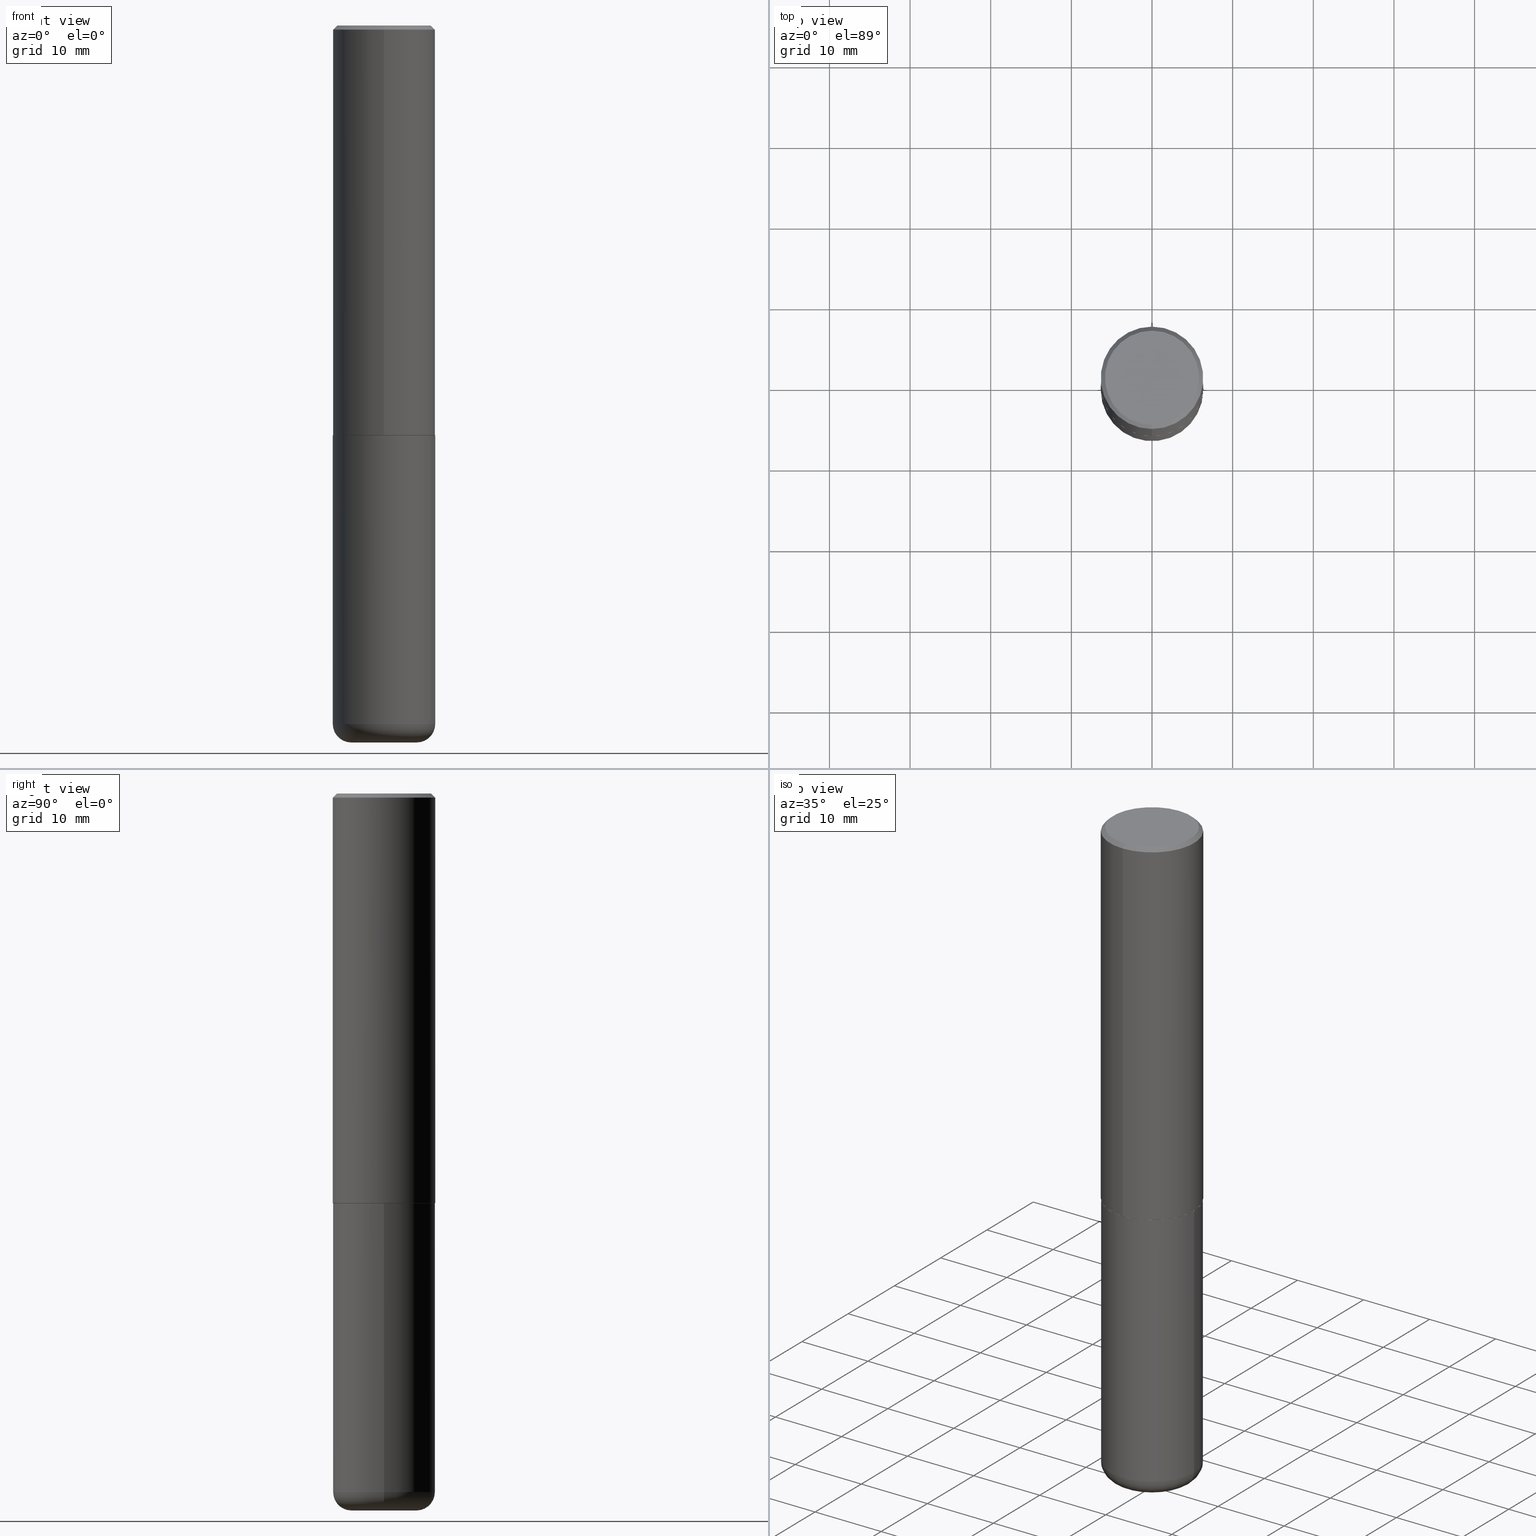
[diagram: canonical four-view strip — front | top / right | iso, engineering-drawing reading convention]
A machine part, canonical four-view strip (front | top / right | iso — engineering-drawing reading convention). The complete STEP part file that produces these views, byte-faithful:
ISO-10303-21;
HEADER;
FILE_DESCRIPTION (( 'STEP AP203' ),
    '1' );
FILE_NAME ('37551.STEP',
    '2024-03-02T04:08:49',
    ( '' ),
    ( '' ),
    'SwSTEP 2.0',
    'SolidWorks 2023',
    '' );
FILE_SCHEMA (( 'CONFIG_CONTROL_DESIGN' ));
ENDSEC;

DATA;
#1 = DATE_TIME_ROLE ( 'creation_date' ) ;
#2 = EDGE_CURVE ( 'NONE', #184, #77, #141, .T. ) ;
#3 = AXIS2_PLACEMENT_3D ( 'NONE', #232, #354, #196 ) ;
#4 = LINE ( 'NONE', #5, #154 ) ;
#5 = CARTESIAN_POINT ( 'NONE',  ( -1.738757706743831162E-15, -0.2490000000000069658, -1.999999999999998890 ) ) ;
#6 = CARTESIAN_POINT ( 'NONE',  ( 1.776356839400276103E-15, 0.2499999999999933109, -1.999000000000000554 ) ) ;
#7 = ORIENTED_EDGE ( 'NONE', *, *, #392, .T. ) ;
#8 = EDGE_CURVE ( 'NONE', #207, #184, #201, .T. ) ;
#9 = PRODUCT_DEFINITION_FORMATION_WITH_SPECIFIED_SOURCE ( 'ANY', '', #225, .NOT_KNOWN. ) ;
#10 = ORIENTED_EDGE ( 'NONE', *, *, #392, .F. ) ;
#11 = VERTEX_POINT ( 'NONE', #124 ) ;
#12 = ORIENTED_EDGE ( 'NONE', *, *, #325, .T. ) ;
#13 = ORIENTED_EDGE ( 'NONE', *, *, #20, .F. ) ;
#14 = AXIS2_PLACEMENT_3D ( 'NONE', #153, #278, #192 ) ;
#15 = LOCAL_TIME ( 23, 8, 49.00000000000000000, #160 ) ;
#16 = VERTEX_POINT ( 'NONE', #249 ) ;
#17 = ORIENTED_EDGE ( 'NONE', *, *, #74, .T. ) ;
#18 = LINE ( 'NONE', #335, #58 ) ;
#19 = CARTESIAN_POINT ( 'NONE',  ( -0.1600000000000000033, -1.076908298823896635E-14, -3.410000000000000142 ) ) ;
#20 = EDGE_CURVE ( 'NONE', #267, #272, #139, .T. ) ;
#21 =( NAMED_UNIT ( * ) SI_UNIT ( $, .STERADIAN. ) SOLID_ANGLE_UNIT ( ) );
#22 = AXIS2_PLACEMENT_3D ( 'NONE', #255, #31, #164 ) ;
#23 = DIRECTION ( 'NONE',  ( 1.000000000000000000, -6.982962677686266711E-15, 0.000000000000000000 ) ) ;
#24 = PERSON_AND_ORGANIZATION ( #309, #228 ) ;
#25 = CARTESIAN_POINT ( 'NONE',  ( 0.000000000000000000, 0.000000000000000000, 0.000000000000000000 ) ) ;
#26 = FACE_OUTER_BOUND ( 'NONE', #152, .T. ) ;
#27 = DIRECTION ( 'NONE',  ( 2.438088387897960049E-29, -3.491481338843145188E-15, -1.000000000000000000 ) ) ;
#28 =( CONVERSION_BASED_UNIT ( 'INCH', #129 ) LENGTH_UNIT ( ) NAMED_UNIT ( #41 ) );
#29 = VECTOR ( 'NONE', #402, 39.37007874015748143 ) ;
#30 = EDGE_CURVE ( 'NONE', #239, #11, #305, .T. ) ;
#31 = DIRECTION ( 'NONE',  ( -2.445468806185136597E-29, 3.491481338843145583E-15, 1.000000000000000000 ) ) ;
#32 = CARTESIAN_POINT ( 'NONE',  ( 1.769251412042698169E-15, 0.2489999999999930325, -2.000000000000000444 ) ) ;
#33 = EDGE_CURVE ( 'NONE', #272, #267, #341, .T. ) ;
#34 = AXIS2_PLACEMENT_3D ( 'NONE', #281, #415, #55 ) ;
#35 = FACE_OUTER_BOUND ( 'NONE', #240, .T. ) ;
#36 = APPROVAL_PERSON_ORGANIZATION ( #40, #138, #85 ) ;
#37 = DIRECTION ( 'NONE',  ( 6.982962677686265922E-15, 1.000000000000000000, -3.483106191921935554E-15 ) ) ;
#38 = ORIENTED_EDGE ( 'NONE', *, *, #182, .T. ) ;
#39 = EDGE_CURVE ( 'NONE', #16, #207, #263, .T. ) ;
#40 = PERSON_AND_ORGANIZATION ( #309, #228 ) ;
#41 = DIMENSIONAL_EXPONENTS ( 1.000000000000000000, 0.000000000000000000, 0.000000000000000000, 0.000000000000000000, 0.000000000000000000, 0.000000000000000000, 0.000000000000000000 ) ;
#42 = ADVANCED_FACE ( 'NONE', ( #372 ), #396, .T. ) ;
#43 = AXIS2_PLACEMENT_3D ( 'NONE', #112, #274, #86 ) ;
#44 = SECURITY_CLASSIFICATION ( '', '', #350 ) ;
#45 = ORIENTED_EDGE ( 'NONE', *, *, #33, .T. ) ;
#46 = ADVANCED_FACE ( 'NONE', ( #59 ), #331, .T. ) ;
#47 = EDGE_LOOP ( 'NONE', ( #50, #45, #38, #98 ) ) ;
#48 = ORIENTED_EDGE ( 'NONE', *, *, #182, .F. ) ;
#49 = ADVANCED_FACE ( 'NONE', ( #84 ), #406, .T. ) ;
#50 = ORIENTED_EDGE ( 'NONE', *, *, #198, .F. ) ;
#51 = CARTESIAN_POINT ( 'NONE',  ( -1.715124499442882299E-15, -0.2500000000000000555, -0.01999999999999918510 ) ) ;
#52 = EDGE_LOOP ( 'NONE', ( #291, #364 ) ) ;
#53 = ORIENTED_EDGE ( 'NONE', *, *, #20, .T. ) ;
#54 = ORIENTED_EDGE ( 'NONE', *, *, #357, .F. ) ;
#55 = DIRECTION ( 'NONE',  ( -6.982962677686266711E-15, -1.000000000000000000, 3.491097007558327996E-15 ) ) ;
#56 = CARTESIAN_POINT ( 'NONE',  ( 0.1600000000000000033, -1.333745871438080791E-14, -3.499999999999999112 ) ) ;
#57 = CARTESIAN_POINT ( 'NONE',  ( 0.000000000000000000, 0.000000000000000000, 0.000000000000000000 ) ) ;
#58 = VECTOR ( 'NONE', #408, 39.37007874015748143 ) ;
#59 = FACE_OUTER_BOUND ( 'NONE', #72, .T. ) ;
#60 = CARTESIAN_POINT ( 'NONE',  ( 6.285415214839433991E-46, -8.971934677910720830E-32, -2.569947113611056727E-17 ) ) ;
#61 = CC_DESIGN_PERSON_AND_ORGANIZATION_ASSIGNMENT ( #148, #222, ( #418 ) ) ;
#62 = CALENDAR_DATE ( 2024, 1, 3 ) ;
#63 = LOCAL_TIME ( 23, 8, 49.00000000000000000, #303 ) ;
#64 = DIRECTION ( 'NONE',  ( -2.445737183286911400E-29, 3.491097007558327602E-15, 1.000000000000000000 ) ) ;
#65 = PERSON_AND_ORGANIZATION_ROLE ( 'classification_officer' ) ;
#66 = COORDINATED_UNIVERSAL_TIME_OFFSET ( 5, 0, .BEHIND. ) ;
#67 = CARTESIAN_POINT ( 'NONE',  ( 0.2499999999999998612, -1.365169203487669276E-14, -3.410000000000000142 ) ) ;
#68 = CALENDAR_DATE ( 2024, 1, 3 ) ;
#69 = DIRECTION ( 'NONE',  ( -4.851104656540962697E-15, -0.7071067811865497932, -0.7071067811865451302 ) ) ;
#70 = VERTEX_POINT ( 'NONE', #247 ) ;
#71 = DIRECTION ( 'NONE',  ( 5.024295867788576727E-15, 0.7071067811866224018, 0.7071067811864726327 ) ) ;
#72 = EDGE_LOOP ( 'NONE', ( #324, #333, #343, #54 ) ) ;
#73 = AXIS2_PLACEMENT_3D ( 'NONE', #165, #171, #314 ) ;
#74 = EDGE_CURVE ( 'NONE', #11, #327, #404, .T. ) ;
#75 = EDGE_CURVE ( 'NONE', #353, #176, #414, .T. ) ;
#76 = PLANE ( 'NONE',  #88 ) ;
#77 = VERTEX_POINT ( 'NONE', #220 ) ;
#78 = ORIENTED_EDGE ( 'NONE', *, *, #115, .T. ) ;
#79 = AXIS2_PLACEMENT_3D ( 'NONE', #244, #375, #191 ) ;
#80 = ORIENTED_EDGE ( 'NONE', *, *, #2, .T. ) ;
#81 = CARTESIAN_POINT ( 'NONE',  ( 4.890937612370272633E-29, -6.982962677686290376E-15, -1.999999999999999778 ) ) ;
#82 = FACE_OUTER_BOUND ( 'NONE', #179, .T. ) ;
#83 = PLANE ( 'NONE',  #238 ) ;
#84 = FACE_OUTER_BOUND ( 'NONE', #388, .T. ) ;
#85 = APPROVAL_ROLE ( '' ) ;
#86 = DIRECTION ( 'NONE',  ( -6.982962677686265922E-15, -1.000000000000000000, 3.483106191921935554E-15 ) ) ;
#87 = CIRCLE ( 'NONE', #189, 0.2500000000000000555 ) ;
#88 = AXIS2_PLACEMENT_3D ( 'NONE', #209, #180, #296 ) ;
#89 = DIRECTION ( 'NONE',  ( -6.982962677686265922E-15, -1.000000000000000000, 3.491097007558327207E-15 ) ) ;
#90 = DIRECTION ( 'NONE',  ( 1.000000000000000000, 0.000000000000000000, 0.000000000000000000 ) ) ;
#91 = APPROVAL_STATUS ( 'not_yet_approved' ) ;
#92 = DIRECTION ( 'NONE',  ( -2.445468806185136597E-29, 3.491481338843145583E-15, 1.000000000000000000 ) ) ;
#93 = DIRECTION ( 'NONE',  ( 2.445737183286911680E-29, -3.491097007558327602E-15, -1.000000000000000000 ) ) ;
#94 = CONICAL_SURFACE ( 'NONE', #322, 0.2500000000000000000, 0.7853981633974481680 ) ;
#95 = PERSON_AND_ORGANIZATION ( #309, #228 ) ;
#96 = AXIS2_PLACEMENT_3D ( 'NONE', #133, #203, #229 ) ;
#97 = ADVANCED_FACE ( 'NONE', ( #26 ), #370, .T. ) ;
#98 = ORIENTED_EDGE ( 'NONE', *, *, #195, .F. ) ;
#99 = DIRECTION ( 'NONE',  ( 1.000000000000000000, -6.982962677686273810E-15, 0.000000000000000000 ) ) ;
#100 = DIRECTION ( 'NONE',  ( -6.982962677686265922E-15, -1.000000000000000000, 3.491097007558327602E-15 ) ) ;
#101 = VERTEX_POINT ( 'NONE', #56 ) ;
#102 = ADVANCED_FACE ( 'NONE', ( #346 ), #300, .T. ) ;
#103 = CARTESIAN_POINT ( 'NONE',  ( 0.1600000000000000033, -1.302322539388492780E-14, -3.410000000000000142 ) ) ;
#104 = CARTESIAN_POINT ( 'NONE',  ( 8.339048629091315302E-29, -1.190595136545512608E-14, -3.410000000000000142 ) ) ;
#105 = EDGE_LOOP ( 'NONE', ( #53, #144, #177, #48 ) ) ;
#106 = CIRCLE ( 'NONE', #96, 0.2500000000000002776 ) ;
#107 = ORIENTED_EDGE ( 'NONE', *, *, #33, .F. ) ;
#108 = FACE_OUTER_BOUND ( 'NONE', #329, .T. ) ;
#109 = DIRECTION ( 'NONE',  ( -2.445468806185136597E-29, 3.491481338843145583E-15, 1.000000000000000000 ) ) ;
#110 = ADVANCED_FACE ( 'NONE', ( #82 ), #215, .T. ) ;
#111 = ORIENTED_EDGE ( 'NONE', *, *, #8, .F. ) ;
#112 = CARTESIAN_POINT ( 'NONE',  ( 4.891474366573836672E-31, -6.982194015116674235E-17, -0.02000000000000005593 ) ) ;
#113 = CIRCLE ( 'NONE', #73, 0.2500000000000000000 ) ;
#114 =( LENGTH_UNIT ( ) NAMED_UNIT ( * ) SI_UNIT ( $, .METRE. ) );
#115 = EDGE_CURVE ( 'NONE', #101, #16, #167, .T. ) ;
#116 = DIRECTION ( 'NONE',  ( -2.445737183286911680E-29, 3.491097007558327602E-15, 1.000000000000000000 ) ) ;
#117 = CARTESIAN_POINT ( 'NONE',  ( 4.891474366573822799E-29, -6.982194015116654415E-15, -1.999999999999999778 ) ) ;
#118 = PERSON_AND_ORGANIZATION ( #309, #228 ) ;
#119 = APPROVAL_DATE_TIME ( #409, #254 ) ;
#120 = CARTESIAN_POINT ( 'NONE',  ( 1.776356839400251254E-15, 0.2500000000000001110, -8.727742518895823935E-16 ) ) ;
#121 = APPROVAL_ROLE ( '' ) ;
#122 = PRODUCT_DEFINITION_SHAPE ( 'NONE', 'NONE',  #418 ) ;
#123 = PERSON_AND_ORGANIZATION_ROLE ( 'design_supplier' ) ;
#124 = CARTESIAN_POINT ( 'NONE',  ( 1.745740669421566875E-15, 0.2499999999999999167, -0.02000000000000092676 ) ) ;
#125 = AXIS2_PLACEMENT_3D ( 'NONE', #104, #412, #342 ) ;
#126 = AXIS2_PLACEMENT_3D ( 'NONE', #403, #109, #365 ) ;
#127 = DATE_AND_TIME ( #62, #63 ) ;
#128 = CARTESIAN_POINT ( 'NONE',  ( 4.891474366573836672E-31, -6.982194015116674235E-17, -0.02000000000000005593 ) ) ;
#129 = LENGTH_MEASURE_WITH_UNIT ( LENGTH_MEASURE( 0.02539999999999999897 ), #114 );
#130 = PERSON_AND_ORGANIZATION_ROLE ( 'creator' ) ;
#131 = DIRECTION ( 'NONE',  ( 1.000000000000000000, -6.982962677686259611E-15, 0.000000000000000000 ) ) ;
#132 = CIRCLE ( 'NONE', #168, 0.08999999999999964972 ) ;
#133 = CARTESIAN_POINT ( 'NONE',  ( 4.889028629390535480E-29, -6.978702918109095527E-15, -1.998999999999999666 ) ) ;
#134 = CARTESIAN_POINT ( 'NONE',  ( 0.000000000000000000, 0.000000000000000000, 0.000000000000000000 ) ) ;
#135 = EDGE_CURVE ( 'NONE', #184, #207, #87, .T. ) ;
#136 = CARTESIAN_POINT ( 'NONE',  ( 4.891474366573822799E-29, -6.982194015116654415E-15, -1.999999999999999778 ) ) ;
#137 = CARTESIAN_POINT ( 'NONE',  ( -1.745740669421567467E-15, -0.2500000000000001110, 8.727742518895823935E-16 ) ) ;
#138 = APPROVAL ( #248, 'UNSPECIFIED' ) ;
#139 = CIRCLE ( 'NONE', #162, 0.2489999999999999991 ) ;
#140 = TOROIDAL_SURFACE ( 'NONE', #126, 0.1600000000000000033, 0.08999999999999967748 ) ;
#141 = LINE ( 'NONE', #265, #211 ) ;
#142 = ADVANCED_FACE ( 'NONE', ( #301 ), #243, .T. ) ;
#143 = LINE ( 'NONE', #166, #245 ) ;
#144 = ORIENTED_EDGE ( 'NONE', *, *, #198, .T. ) ;
#145 = ORIENTED_EDGE ( 'NONE', *, *, #357, .T. ) ;
#146 = ORIENTED_EDGE ( 'NONE', *, *, #379, .F. ) ;
#147 = DIRECTION ( 'NONE',  ( -1.000000000000000000, 6.982962677686265922E-15, -4.876176775795935793E-29 ) ) ;
#148 = PERSON_AND_ORGANIZATION ( #309, #228 ) ;
#149 = CC_DESIGN_APPROVAL ( #254, ( #44 ) ) ;
#150 = ORIENTED_EDGE ( 'NONE', *, *, #30, .T. ) ;
#151 = DIRECTION ( 'NONE',  ( -2.445468806185136597E-29, 3.491481338843145583E-15, 1.000000000000000000 ) ) ;
#152 = EDGE_LOOP ( 'NONE', ( #231, #242, #80, #236 ) ) ;
#153 = CARTESIAN_POINT ( 'NONE',  ( 4.891474366573822799E-29, -6.982194015116654415E-15, -1.999999999999999778 ) ) ;
#154 = VECTOR ( 'NONE', #382, 39.37007874015748143 ) ;
#155 = CALENDAR_DATE ( 2024, 1, 3 ) ;
#156 = CARTESIAN_POINT ( 'NONE',  ( 8.559140821647976968E-29, -1.222018468595100619E-14, -3.499999999999999112 ) ) ;
#157 = EDGE_CURVE ( 'NONE', #77, #70, #113, .T. ) ;
#158 = APPROVAL_DATE_TIME ( #163, #138 ) ;
#159 = DIRECTION ( 'NONE',  ( -1.000000000000000000, 7.105427357600996337E-15, 0.000000000000000000 ) ) ;
#160 = COORDINATED_UNIVERSAL_TIME_OFFSET ( 5, 0, .BEHIND. ) ;
#161 = DIRECTION ( 'NONE',  ( -1.000000000000000000, 6.982962677686265922E-15, -4.876176775795935793E-29 ) ) ;
#162 = AXIS2_PLACEMENT_3D ( 'NONE', #117, #280, #378 ) ;
#163 = DATE_AND_TIME ( #308, #15 ) ;
#164 = DIRECTION ( 'NONE',  ( 1.000000000000000000, -6.982962677686265133E-15, 4.883557194083112340E-29 ) ) ;
#165 = CARTESIAN_POINT ( 'NONE',  ( 4.890937612370272633E-29, -6.982962677686290376E-15, -1.999999999999999778 ) ) ;
#166 = CARTESIAN_POINT ( 'NONE',  ( 1.745740669421566875E-15, 0.2499999999999999167, -0.02000000000000092676 ) ) ;
#167 = CIRCLE ( 'NONE', #270, 0.1600000000000000033 ) ;
#168 = AXIS2_PLACEMENT_3D ( 'NONE', #103, #237, #99 ) ;
#169 = LINE ( 'NONE', #137, #286 ) ;
#170 = ADVANCED_FACE ( 'NONE', ( #313 ), #94, .T. ) ;
#171 = DIRECTION ( 'NONE',  ( -2.445468806185136597E-29, 3.491481338843145583E-15, 1.000000000000000000 ) ) ;
#172 = AXIS2_PLACEMENT_3D ( 'NONE', #310, #197, #384 ) ;
#173 =( GEOMETRIC_REPRESENTATION_CONTEXT ( 3 ) GLOBAL_UNCERTAINTY_ASSIGNED_CONTEXT ( ( #374 ) ) GLOBAL_UNIT_ASSIGNED_CONTEXT ( ( #28, #218, #21 ) ) REPRESENTATION_CONTEXT ( 'NONE', 'WORKASPACE' ) );
#174 = ORIENTED_EDGE ( 'NONE', *, *, #135, .F. ) ;
#175 = CC_DESIGN_PERSON_AND_ORGANIZATION_ASSIGNMENT ( #118, #279, ( #225 ) ) ;
#176 = VERTEX_POINT ( 'NONE', #256 ) ;
#177 = ORIENTED_EDGE ( 'NONE', *, *, #230, .F. ) ;
#178 = ORIENTED_EDGE ( 'NONE', *, *, #379, .T. ) ;
#179 = EDGE_LOOP ( 'NONE', ( #208, #150, #210, #398 ) ) ;
#180 = DIRECTION ( 'NONE',  ( 2.445737183286911400E-29, -3.491097007558327602E-15, -1.000000000000000000 ) ) ;
#181 = ORIENTED_EDGE ( 'NONE', *, *, #74, .F. ) ;
#182 = EDGE_CURVE ( 'NONE', #267, #204, #4, .T. ) ;
#183 = CARTESIAN_POINT ( 'NONE',  ( 0.000000000000000000, 0.000000000000000000, 0.000000000000000000 ) ) ;
#184 = VERTEX_POINT ( 'NONE', #67 ) ;
#185 = CARTESIAN_POINT ( 'NONE',  ( 8.339048629091315302E-29, -1.190595136545512608E-14, -3.410000000000000142 ) ) ;
#186 = DATE_AND_TIME ( #361, #369 ) ;
#187 = DESIGN_CONTEXT ( 'detailed design', #338, 'design' ) ;
#188 = DIRECTION ( 'NONE',  ( 1.000000000000000000, -6.982962677686269077E-15, 0.000000000000000000 ) ) ;
#189 = AXIS2_PLACEMENT_3D ( 'NONE', #185, #339, #188 ) ;
#190 = APPROVAL_PERSON_ORGANIZATION ( #373, #344, #121 ) ;
#191 = DIRECTION ( 'NONE',  ( -6.982962677686265133E-15, -1.000000000000000000, 3.291383124896702687E-15 ) ) ;
#192 = DIRECTION ( 'NONE',  ( -6.982962677686265133E-15, -1.000000000000000000, 3.291383124896702687E-15 ) ) ;
#193 = DIRECTION ( 'NONE',  ( -2.445737183286911680E-29, 3.491097007558327602E-15, 1.000000000000000000 ) ) ;
#194 = AXIS2_PLACEMENT_3D ( 'NONE', #358, #293, #131 ) ;
#195 = EDGE_CURVE ( 'NONE', #239, #204, #381, .T. ) ;
#196 = DIRECTION ( 'NONE',  ( -6.982962677686265922E-15, -1.000000000000000000, 3.483106191921935554E-15 ) ) ;
#197 = DIRECTION ( 'NONE',  ( -2.445737183286911680E-29, 3.491097007558327602E-15, 1.000000000000000000 ) ) ;
#198 = EDGE_CURVE ( 'NONE', #272, #239, #318, .T. ) ;
#199 = CYLINDRICAL_SURFACE ( 'NONE', #397, 0.2500000000000001110 ) ;
#200 = DIRECTION ( 'NONE',  ( -6.982962677686265133E-15, -1.000000000000000000, 3.291383124896702687E-15 ) ) ;
#201 = CIRCLE ( 'NONE', #125, 0.2500000000000000555 ) ;
#202 = CC_DESIGN_SECURITY_CLASSIFICATION ( #44, ( #9 ) ) ;
#203 = DIRECTION ( 'NONE',  ( -2.445737183286911680E-29, 3.491097007558327602E-15, 1.000000000000000000 ) ) ;
#204 = VERTEX_POINT ( 'NONE', #289 ) ;
#205 = DIRECTION ( 'NONE',  ( -2.445737183286911680E-29, 3.491097007558327602E-15, 1.000000000000000000 ) ) ;
#206 = TOROIDAL_SURFACE ( 'NONE', #22, 0.1600000000000000033, 0.08999999999999967748 ) ;
#207 = VERTEX_POINT ( 'NONE', #349 ) ;
#208 = ORIENTED_EDGE ( 'NONE', *, *, #230, .T. ) ;
#209 = CARTESIAN_POINT ( 'NONE',  ( 1.606081415867841067E-15, 0.2299999999999999822, -8.158020473064706174E-16 ) ) ;
#210 = ORIENTED_EDGE ( 'NONE', *, *, #294, .F. ) ;
#211 = VECTOR ( 'NONE', #393, 39.37007874015748143 ) ;
#212 = ORIENTED_EDGE ( 'NONE', *, *, #195, .T. ) ;
#213 = LOCAL_TIME ( 23, 8, 49.00000000000000000, #221 ) ;
#214 = ORIENTED_EDGE ( 'NONE', *, *, #39, .F. ) ;
#215 = CYLINDRICAL_SURFACE ( 'NONE', #34, 0.2500000000000001110 ) ;
#216 = CARTESIAN_POINT ( 'NONE',  ( 4.890937612370272633E-29, -6.982962677686290376E-15, -1.999999999999999778 ) ) ;
#217 = DIRECTION ( 'NONE',  ( 1.000000000000000000, -6.982962677686266711E-15, 4.876176775795935793E-29 ) ) ;
#218 =( NAMED_UNIT ( * ) PLANE_ANGLE_UNIT ( ) SI_UNIT ( $, .RADIAN. ) );
#219 = PERSON_AND_ORGANIZATION ( #309, #228 ) ;
#220 = CARTESIAN_POINT ( 'NONE',  ( 0.2500000000000000000, -8.728703347107857054E-15, -1.999999999999999778 ) ) ;
#221 = COORDINATED_UNIVERSAL_TIME_OFFSET ( 5, 0, .BEHIND. ) ;
#222 = PERSON_AND_ORGANIZATION_ROLE ( 'creator' ) ;
#223 = DIRECTION ( 'NONE',  ( 1.000000000000000000, -6.982962677686259611E-15, 0.000000000000000000 ) ) ;
#224 = MECHANICAL_CONTEXT ( 'NONE', #347, 'mechanical' ) ;
#225 = PRODUCT ( '37551', '37551', '', ( #224 ) ) ;
#226 = PRODUCT_RELATED_PRODUCT_CATEGORY ( 'detail', '', ( #225 ) ) ;
#227 = AXIS2_PLACEMENT_3D ( 'NONE', #19, #251, #159 ) ;
#228 = ORGANIZATION ( 'UNSPECIFIED', 'UNSPECIFIED', '' ) ;
#229 = DIRECTION ( 'NONE',  ( -6.982962677686265922E-15, -1.000000000000000000, 3.278217592397112312E-15 ) ) ;
#230 = EDGE_CURVE ( 'NONE', #204, #239, #106, .T. ) ;
#231 = ORIENTED_EDGE ( 'NONE', *, *, #321, .F. ) ;
#232 = CARTESIAN_POINT ( 'NONE',  ( 4.891474366573836672E-31, -6.982194015116674235E-17, -0.02000000000000005593 ) ) ;
#233 = AXIS2_PLACEMENT_3D ( 'NONE', #183, #151, #217 ) ;
#234 = CC_DESIGN_APPROVAL ( #344, ( #418 ) ) ;
#235 = CARTESIAN_POINT ( 'NONE',  ( -1.738757706743831162E-15, -0.2490000000000069658, -1.999999999999998890 ) ) ;
#236 = ORIENTED_EDGE ( 'NONE', *, *, #340, .F. ) ;
#237 = DIRECTION ( 'NONE',  ( -6.982962677686266711E-15, -1.000000000000000000, 3.491481338843145583E-15 ) ) ;
#238 = AXIS2_PLACEMENT_3D ( 'NONE', #81, #401, #147 ) ;
#239 = VERTEX_POINT ( 'NONE', #6 ) ;
#240 = EDGE_LOOP ( 'NONE', ( #13, #107 ) ) ;
#241 = EDGE_CURVE ( 'NONE', #204, #327, #169, .T. ) ;
#242 = ORIENTED_EDGE ( 'NONE', *, *, #8, .T. ) ;
#243 = CONICAL_SURFACE ( 'NONE', #282, 0.2489999999999999991, 0.7853981633975507526 ) ;
#244 = CARTESIAN_POINT ( 'NONE',  ( 4.891474366573822799E-29, -6.982194015116654415E-15, -1.999999999999999778 ) ) ;
#245 = VECTOR ( 'NONE', #394, 39.37007874015748854 ) ;
#246 = EDGE_CURVE ( 'NONE', #176, #327, #352, .T. ) ;
#247 = CARTESIAN_POINT ( 'NONE',  ( -0.2500000000000000000, -7.668100182170457762E-15, -1.999999999999999778 ) ) ;
#248 = APPROVAL_STATUS ( 'not_yet_approved' ) ;
#249 = CARTESIAN_POINT ( 'NONE',  ( -0.1600000000000000033, -1.060645541739486182E-14, -3.499999999999999112 ) ) ;
#250 = PERSON_AND_ORGANIZATION ( #309, #228 ) ;
#251 = DIRECTION ( 'NONE',  ( 7.105427357601001859E-15, 1.000000000000000000, -3.491481338843145583E-15 ) ) ;
#252 = CLOSED_SHELL ( 'NONE', ( #49, #400, #299, #97, #268, #102 ) ) ;
#253 = DIRECTION ( 'NONE',  ( -2.445737183286911680E-29, 3.491097007558327602E-15, 1.000000000000000000 ) ) ;
#254 = APPROVAL ( #91, 'UNSPECIFIED' ) ;
#255 = CARTESIAN_POINT ( 'NONE',  ( 8.339048629091315302E-29, -1.190595136545512608E-14, -3.410000000000000142 ) ) ;
#256 = CARTESIAN_POINT ( 'NONE',  ( -1.646519519465166968E-15, -0.2299999999999999822, 7.772528406023046093E-16 ) ) ;
#257 = CIRCLE ( 'NONE', #3, 0.2500000000000000000 ) ;
#258 = FACE_OUTER_BOUND ( 'NONE', #315, .T. ) ;
#259 = CARTESIAN_POINT ( 'NONE',  ( -1.715124499442882299E-15, -0.2500000000000000555, -0.01999999999999918510 ) ) ;
#260 = DIRECTION ( 'NONE',  ( -6.982962677686266711E-15, -1.000000000000000000, 3.491097007558327996E-15 ) ) ;
#261 = ADVANCED_BREP_SHAPE_REPRESENTATION ( '37551', ( #275, #285, #405 ), #173 ) ;
#262 = DIRECTION ( 'NONE',  ( -2.445737183286911680E-29, 3.491097007558327602E-15, 1.000000000000000000 ) ) ;
#263 = CIRCLE ( 'NONE', #227, 0.08999999999999964972 ) ;
#264 = APPROVAL_PERSON_ORGANIZATION ( #24, #254, #283 ) ;
#265 = CARTESIAN_POINT ( 'NONE',  ( 0.2500000000000000000, -1.745740669421566678E-15, 1.219044193948983948E-29 ) ) ;
#266 = ADVANCED_FACE ( 'NONE', ( #35 ), #287, .F. ) ;
#267 = VERTEX_POINT ( 'NONE', #235 ) ;
#268 = ADVANCED_FACE ( 'NONE', ( #386 ), #206, .T. ) ;
#269 = EDGE_LOOP ( 'NONE', ( #359, #10 ) ) ;
#270 = AXIS2_PLACEMENT_3D ( 'NONE', #156, #92, #223 ) ;
#271 = ORIENTED_EDGE ( 'NONE', *, *, #135, .T. ) ;
#272 = VERTEX_POINT ( 'NONE', #284 ) ;
#273 = EDGE_LOOP ( 'NONE', ( #295, #367, #145, #17 ) ) ;
#274 = DIRECTION ( 'NONE',  ( -2.445737183286911680E-29, 3.491097007558327602E-15, 1.000000000000000000 ) ) ;
#275 = MANIFOLD_SOLID_BREP ( 'Body-Move/Copy2[1]', #252 ) ;
#276 = VECTOR ( 'NONE', #71, 39.37007874015748143 ) ;
#277 = CARTESIAN_POINT ( 'NONE',  ( 4.891474366573822799E-29, -6.982194015116654415E-15, -1.999999999999999778 ) ) ;
#278 = DIRECTION ( 'NONE',  ( -2.445737183286911680E-29, 3.491097007558327602E-15, 1.000000000000000000 ) ) ;
#279 = PERSON_AND_ORGANIZATION_ROLE ( 'design_owner' ) ;
#280 = DIRECTION ( 'NONE',  ( -2.445737183286911680E-29, 3.491097007558327602E-15, 1.000000000000000000 ) ) ;
#281 = CARTESIAN_POINT ( 'NONE',  ( 0.000000000000000000, 0.000000000000000000, 0.000000000000000000 ) ) ;
#282 = AXIS2_PLACEMENT_3D ( 'NONE', #277, #193, #200 ) ;
#283 = APPROVAL_ROLE ( '' ) ;
#284 = CARTESIAN_POINT ( 'NONE',  ( 1.772804125721499659E-15, 0.2489999999999930325, -2.000000000000000444 ) ) ;
#285 = MANIFOLD_SOLID_BREP ( 'Body-Move/Copy2[2]', #304 ) ;
#286 = VECTOR ( 'NONE', #262, 39.37007874015748143 ) ;
#287 = PLANE ( 'NONE',  #297 ) ;
#288 = FACE_OUTER_BOUND ( 'NONE', #334, .T. ) ;
#289 = CARTESIAN_POINT ( 'NONE',  ( -1.745740669421519543E-15, -0.2500000000000072164, -1.998999999999998778 ) ) ;
#290 = CC_DESIGN_DATE_AND_TIME_ASSIGNMENT ( #127, #345, ( #44 ) ) ;
#291 = ORIENTED_EDGE ( 'NONE', *, *, #157, .T. ) ;
#292 = CARTESIAN_POINT ( 'NONE',  ( 1.675911042644703774E-15, 0.2299999999999999822, -8.286517828745257562E-16 ) ) ;
#293 = DIRECTION ( 'NONE',  ( -2.445468806185136597E-29, 3.491481338843145583E-15, 1.000000000000000000 ) ) ;
#294 = EDGE_CURVE ( 'NONE', #327, #11, #257, .T. ) ;
#295 = ORIENTED_EDGE ( 'NONE', *, *, #246, .F. ) ;
#296 = DIRECTION ( 'NONE',  ( 6.982962677686265922E-15, 1.000000000000000000, -3.491097007558327602E-15 ) ) ;
#297 = AXIS2_PLACEMENT_3D ( 'NONE', #136, #64, #100 ) ;
#298 = CIRCLE ( 'NONE', #332, 0.2500000000000000000 ) ;
#299 = ADVANCED_FACE ( 'NONE', ( #326 ), #83, .F. ) ;
#300 = PLANE ( 'NONE',  #368 ) ;
#301 = FACE_OUTER_BOUND ( 'NONE', #47, .T. ) ;
#302 = CC_DESIGN_PERSON_AND_ORGANIZATION_ASSIGNMENT ( #250, #65, ( #44 ) ) ;
#303 = COORDINATED_UNIVERSAL_TIME_OFFSET ( 5, 0, .BEHIND. ) ;
#304 = CLOSED_SHELL ( 'NONE', ( #42, #110, #46, #170, #387, #142, #266, #348 ) ) ;
#305 = LINE ( 'NONE', #120, #29 ) ;
#306 = DIRECTION ( 'NONE',  ( -2.445468806185136597E-29, 3.491481338843145583E-15, 1.000000000000000000 ) ) ;
#307 = CARTESIAN_POINT ( 'NONE',  ( 1.690506257577845460E-28, -2.683497136698531760E-16, -3.499999999999999112 ) ) ;
#308 = CALENDAR_DATE ( 2024, 1, 3 ) ;
#309 = PERSON ( 'UNSPECIFIED', 'UNSPECIFIED', 'UNSPECIFIED', ('UNSPECIFIED'), ('UNSPECIFIED'), ('UNSPECIFIED') ) ;
#310 = CARTESIAN_POINT ( 'NONE',  ( 4.889028629390535480E-29, -6.978702918109095527E-15, -1.998999999999999666 ) ) ;
#311 = CIRCLE ( 'NONE', #194, 0.1600000000000000033 ) ;
#312 = DATE_AND_TIME ( #68, #317 ) ;
#313 = FACE_OUTER_BOUND ( 'NONE', #273, .T. ) ;
#314 = DIRECTION ( 'NONE',  ( 1.000000000000000000, -6.982962677686266711E-15, 0.000000000000000000 ) ) ;
#315 = EDGE_LOOP ( 'NONE', ( #78, #399, #174, #146 ) ) ;
#316 = VECTOR ( 'NONE', #69, 39.37007874015748854 ) ;
#317 = LOCAL_TIME ( 23, 8, 49.00000000000000000, #377 ) ;
#318 = LINE ( 'NONE', #32, #276 ) ;
#319 = ORIENTED_EDGE ( 'NONE', *, *, #75, .T. ) ;
#320 = CC_DESIGN_DATE_AND_TIME_ASSIGNMENT ( #186, #1, ( #418 ) ) ;
#321 = EDGE_CURVE ( 'NONE', #207, #70, #18, .T. ) ;
#322 = AXIS2_PLACEMENT_3D ( 'NONE', #351, #93, #37 ) ;
#323 = AXIS2_PLACEMENT_3D ( 'NONE', #60, #253, #89 ) ;
#324 = ORIENTED_EDGE ( 'NONE', *, *, #325, .F. ) ;
#325 = EDGE_CURVE ( 'NONE', #176, #353, #391, .T. ) ;
#326 = FACE_OUTER_BOUND ( 'NONE', #52, .T. ) ;
#327 = VERTEX_POINT ( 'NONE', #51 ) ;
#328 = CARTESIAN_POINT ( 'NONE',  ( 6.285415214839433991E-46, -8.971934677910720830E-32, -2.569947113611056727E-17 ) ) ;
#329 = EDGE_LOOP ( 'NONE', ( #319, #12 ) ) ;
#330 = ORIENTED_EDGE ( 'NONE', *, *, #157, .F. ) ;
#331 = CONICAL_SURFACE ( 'NONE', #390, 0.2500000000000000000, 0.7853981633974481680 ) ;
#332 = AXIS2_PLACEMENT_3D ( 'NONE', #216, #337, #23 ) ;
#333 = ORIENTED_EDGE ( 'NONE', *, *, #246, .T. ) ;
#334 = EDGE_LOOP ( 'NONE', ( #360, #212, #389, #181 ) ) ;
#335 = CARTESIAN_POINT ( 'NONE',  ( -0.2500000000000000000, 1.776356839400250465E-15, -1.229733772563726445E-29 ) ) ;
#336 = DIRECTION ( 'NONE',  ( 1.000000000000000000, -6.982962677686266711E-15, 4.876176775795935793E-29 ) ) ;
#337 = DIRECTION ( 'NONE',  ( -2.445468806185136597E-29, 3.491481338843145583E-15, 1.000000000000000000 ) ) ;
#338 = APPLICATION_CONTEXT ( 'configuration controlled 3d designs of mechanical parts and assemblies' ) ;
#339 = DIRECTION ( 'NONE',  ( -2.445468806185136597E-29, 3.491481338843145583E-15, 1.000000000000000000 ) ) ;
#340 = EDGE_CURVE ( 'NONE', #70, #77, #298, .T. ) ;
#341 = CIRCLE ( 'NONE', #14, 0.2489999999999999991 ) ;
#342 = DIRECTION ( 'NONE',  ( 1.000000000000000000, -6.982962677686269077E-15, 0.000000000000000000 ) ) ;
#343 = ORIENTED_EDGE ( 'NONE', *, *, #294, .T. ) ;
#344 = APPROVAL ( #413, 'UNSPECIFIED' ) ;
#345 = DATE_TIME_ROLE ( 'classification_date' ) ;
#346 = FACE_OUTER_BOUND ( 'NONE', #269, .T. ) ;
#347 = APPLICATION_CONTEXT ( 'configuration controlled 3d designs of mechanical parts and assemblies' ) ;
#348 = ADVANCED_FACE ( 'NONE', ( #108 ), #76, .F. ) ;
#349 = CARTESIAN_POINT ( 'NONE',  ( -0.2499999999999998612, -1.012959452605487719E-14, -3.410000000000000142 ) ) ;
#350 = SECURITY_CLASSIFICATION_LEVEL ( 'unclassified' ) ;
#351 = CARTESIAN_POINT ( 'NONE',  ( 4.891474366573836672E-31, -6.982194015116674235E-17, -0.02000000000000005593 ) ) ;
#352 = LINE ( 'NONE', #259, #316 ) ;
#353 = VERTEX_POINT ( 'NONE', #292 ) ;
#354 = DIRECTION ( 'NONE',  ( -2.445737183286911680E-29, 3.491097007558327602E-15, 1.000000000000000000 ) ) ;
#355 = EDGE_LOOP ( 'NONE', ( #214, #7, #178, #111 ) ) ;
#356 = AXIS2_PLACEMENT_3D ( 'NONE', #25, #306, #336 ) ;
#357 = EDGE_CURVE ( 'NONE', #353, #11, #143, .T. ) ;
#358 = CARTESIAN_POINT ( 'NONE',  ( 8.559140821647976968E-29, -1.222018468595100619E-14, -3.499999999999999112 ) ) ;
#359 = ORIENTED_EDGE ( 'NONE', *, *, #115, .F. ) ;
#360 = ORIENTED_EDGE ( 'NONE', *, *, #30, .F. ) ;
#361 = CALENDAR_DATE ( 2024, 1, 3 ) ;
#362 = AXIS2_PLACEMENT_3D ( 'NONE', #328, #116, #371 ) ;
#363 = ORIENTED_EDGE ( 'NONE', *, *, #2, .F. ) ;
#364 = ORIENTED_EDGE ( 'NONE', *, *, #340, .T. ) ;
#365 = DIRECTION ( 'NONE',  ( 1.000000000000000000, -6.982962677686265133E-15, 4.883557194083112340E-29 ) ) ;
#366 = CC_DESIGN_PERSON_AND_ORGANIZATION_ASSIGNMENT ( #95, #123, ( #9 ) ) ;
#367 = ORIENTED_EDGE ( 'NONE', *, *, #75, .F. ) ;
#368 = AXIS2_PLACEMENT_3D ( 'NONE', #307, #27, #161 ) ;
#369 = LOCAL_TIME ( 23, 8, 49.00000000000000000, #66 ) ;
#370 = CYLINDRICAL_SURFACE ( 'NONE', #233, 0.2500000000000000000 ) ;
#371 = DIRECTION ( 'NONE',  ( -6.982962677686265922E-15, -1.000000000000000000, 3.491097007558327207E-15 ) ) ;
#372 = FACE_OUTER_BOUND ( 'NONE', #105, .T. ) ;
#373 = PERSON_AND_ORGANIZATION ( #309, #228 ) ;
#374 = UNCERTAINTY_MEASURE_WITH_UNIT (LENGTH_MEASURE( 1.000000000000000082E-05 ), #28, 'distance_accuracy_value', 'NONE');
#375 = DIRECTION ( 'NONE',  ( -2.445737183286911680E-29, 3.491097007558327602E-15, 1.000000000000000000 ) ) ;
#376 = DIRECTION ( 'NONE',  ( 2.445737183286911680E-29, -3.491097007558327602E-15, -1.000000000000000000 ) ) ;
#377 = COORDINATED_UNIVERSAL_TIME_OFFSET ( 5, 0, .BEHIND. ) ;
#378 = DIRECTION ( 'NONE',  ( -6.982962677686265133E-15, -1.000000000000000000, 3.291383124896702687E-15 ) ) ;
#379 = EDGE_CURVE ( 'NONE', #101, #184, #132, .T. ) ;
#380 = CC_DESIGN_PERSON_AND_ORGANIZATION_ASSIGNMENT ( #219, #130, ( #9 ) ) ;
#381 = CIRCLE ( 'NONE', #172, 0.2500000000000002776 ) ;
#382 = DIRECTION ( 'NONE',  ( -4.937700262165053702E-15, -0.7071067811866175168, 0.7071067811864775177 ) ) ;
#383 = CC_DESIGN_APPROVAL ( #138, ( #9 ) ) ;
#384 = DIRECTION ( 'NONE',  ( -6.982962677686265922E-15, -1.000000000000000000, 3.278217592397112312E-15 ) ) ;
#385 = APPROVAL_DATE_TIME ( #312, #344 ) ;
#386 = FACE_OUTER_BOUND ( 'NONE', #355, .T. ) ;
#387 = ADVANCED_FACE ( 'NONE', ( #288 ), #199, .T. ) ;
#388 = EDGE_LOOP ( 'NONE', ( #271, #395, #330, #363 ) ) ;
#389 = ORIENTED_EDGE ( 'NONE', *, *, #241, .T. ) ;
#390 = AXIS2_PLACEMENT_3D ( 'NONE', #128, #376, #410 ) ;
#391 = CIRCLE ( 'NONE', #362, 0.2299999999999999822 ) ;
#392 = EDGE_CURVE ( 'NONE', #16, #101, #311, .T. ) ;
#393 = DIRECTION ( 'NONE',  ( -2.445468806185136877E-29, 3.491481338843145188E-15, 1.000000000000000000 ) ) ;
#394 = DIRECTION ( 'NONE',  ( 4.937700262164546464E-15, 0.7071067811865447972, -0.7071067811865500152 ) ) ;
#395 = ORIENTED_EDGE ( 'NONE', *, *, #321, .T. ) ;
#396 = CONICAL_SURFACE ( 'NONE', #79, 0.2489999999999999991, 0.7853981633975507526 ) ;
#397 = AXIS2_PLACEMENT_3D ( 'NONE', #134, #205, #260 ) ;
#398 = ORIENTED_EDGE ( 'NONE', *, *, #241, .F. ) ;
#399 = ORIENTED_EDGE ( 'NONE', *, *, #39, .T. ) ;
#400 = ADVANCED_FACE ( 'NONE', ( #258 ), #140, .T. ) ;
#401 = DIRECTION ( 'NONE',  ( 2.438088387897960049E-29, -3.491481338843145188E-15, -1.000000000000000000 ) ) ;
#402 = DIRECTION ( 'NONE',  ( -2.445737183286911680E-29, 3.491097007558327602E-15, 1.000000000000000000 ) ) ;
#403 = CARTESIAN_POINT ( 'NONE',  ( 8.339048629091315302E-29, -1.190595136545512608E-14, -3.410000000000000142 ) ) ;
#404 = CIRCLE ( 'NONE', #43, 0.2500000000000000000 ) ;
#405 = AXIS2_PLACEMENT_3D ( 'NONE', #57, #416, #90 ) ;
#406 = CYLINDRICAL_SURFACE ( 'NONE', #356, 0.2500000000000000000 ) ;
#407 = APPLICATION_PROTOCOL_DEFINITION ( 'international standard', 'config_control_design', 1994, #347 ) ;
#408 = DIRECTION ( 'NONE',  ( -2.445468806185136877E-29, 3.491481338843145188E-15, 1.000000000000000000 ) ) ;
#409 = DATE_AND_TIME ( #155, #213 ) ;
#410 = DIRECTION ( 'NONE',  ( 6.982962677686265922E-15, 1.000000000000000000, -3.483106191921935554E-15 ) ) ;
#411 = APPLICATION_PROTOCOL_DEFINITION ( 'international standard', 'config_control_design', 1994, #338 ) ;
#412 = DIRECTION ( 'NONE',  ( -2.445468806185136597E-29, 3.491481338843145583E-15, 1.000000000000000000 ) ) ;
#413 = APPROVAL_STATUS ( 'not_yet_approved' ) ;
#414 = CIRCLE ( 'NONE', #323, 0.2299999999999999822 ) ;
#415 = DIRECTION ( 'NONE',  ( -2.445737183286911680E-29, 3.491097007558327602E-15, 1.000000000000000000 ) ) ;
#416 = DIRECTION ( 'NONE',  ( 0.000000000000000000, 0.000000000000000000, 1.000000000000000000 ) ) ;
#417 = SHAPE_DEFINITION_REPRESENTATION ( #122, #261 ) ;
#418 = PRODUCT_DEFINITION ( 'UNKNOWN', '', #9, #187 ) ;
ENDSEC;
END-ISO-10303-21;
